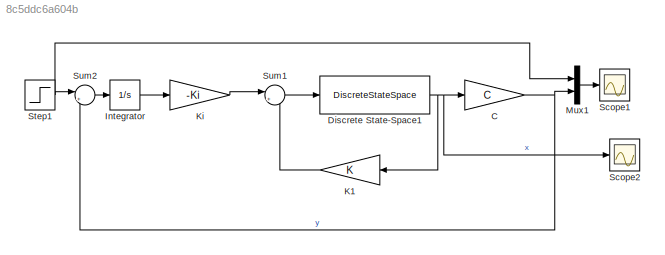
MODEL slx_8c5ddc6a604b
KIND model
CONFIG AbsTol = auto
CONFIG EnableMultiTasking = off
CONFIG FixedStep = auto
CONFIG MaxStep = auto
CONFIG MinStep = auto
CONFIG RelTol = 1e-3
CONFIG SampleTimeConstraint = Unconstrained
CONFIG SolverName = VariableStepAuto
CONFIG StartTime = 0.0
CONFIG StopTime = 50
BLOCK [Gain] C
  Gain = C
  Multiplication = Matrix(K*u)
  NameLocation = top
BLOCK [DiscreteStateSpace] Discrete State-Space1
  A = G
  B = H
  C = eye(2)
  D = zeros(2,1)
  InitialCondition = [0; 0]
  SampleTime = Ts
BLOCK [Integrator] Integrator
  Ports = [1, 1]
BLOCK [Gain] K1
  Gain = K
  Multiplication = Matrix(K*u)
BLOCK [Gain] Ki
  Gain = -Ki
  Multiplication = Matrix(K*u)
  NameLocation = top
BLOCK [Mux] Mux1
  DisplayOption = bar
  Inputs = 2
  Ports = [2, 1]
BLOCK [Scope] Scope1
  Floating = off
  NumInputPorts = 1
  Ports = [1]
  ScopeSpecificationString = Simulink.scopes.TimeScopeBlockCfg('CurrentConfiguration', extmgr.ConfigurationSet(extmgr.Configuration('Core','General UI',true,'FigureColor',[1 1 1]),extmgr.Configuration('Core','Source UI',true),extmgr.Configuration('Sources','WiredSimulink',true,'DataLogging',true,'DataLoggingSaveFormat','StructureWithTime','DataLoggingDecimation','1','DataLoggingDecimateData',true),extmgr.Configuration('Visual...<+2154ch>
BLOCK [Scope] Scope2
  Floating = off
  NumInputPorts = 1
  Ports = [1]
  ScopeSpecificationString = Simulink.scopes.TimeScopeBlockCfg('CurrentConfiguration', extmgr.ConfigurationSet(extmgr.Configuration('Core','General UI',true,'FigureColor',[1 1 1]),extmgr.Configuration('Core','Source UI',true),extmgr.Configuration('Sources','WiredSimulink',true,'DataLogging',true,'DataLoggingSaveFormat','StructureWithTime','DataLoggingDecimation','1','DataLoggingDecimateData',true,'DataLoggingVariableName','Sc...<+2197ch>
BLOCK [Step] Step1
  SampleTime = 0
BLOCK [Sum] Sum1
  Inputs = |+-
  Ports = [2, 1]
BLOCK [Sum] Sum2
  Inputs = |+-
  Ports = [2, 1]
NET C:1 -> Mux1:2, Sum2:2
NET Discrete State-Space1:1 -> C:1, K1:1, Scope2:1
LINE Integrator:1 -> Ki:1
LINE K1:1 -> Sum1:2
LINE Ki:1 -> Sum1:1
LINE Mux1:1 -> Scope1:1
NET Step1:1 -> Mux1:1, Sum2:1
LINE Sum1:1 -> Discrete State-Space1:1
LINE Sum2:1 -> Integrator:1
note: NET lines group one-source signal fan-out (src -> all destinations, sorted); 1:1 wires keep LINE
